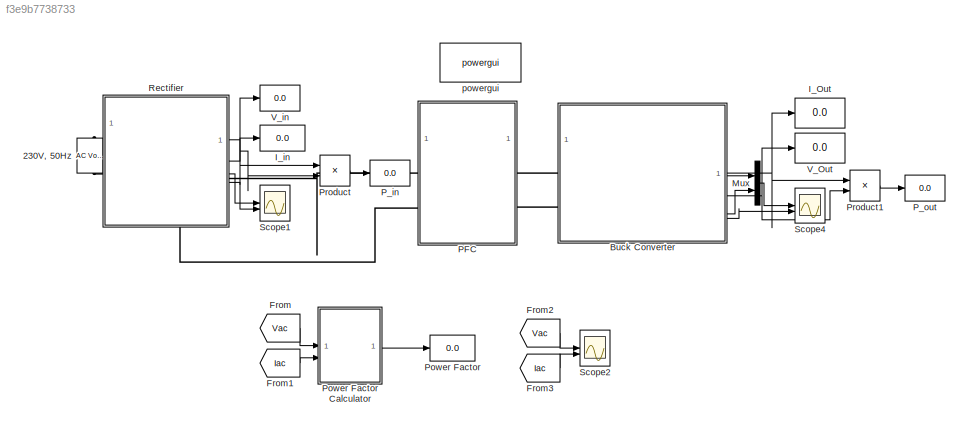
MODEL slx_f3e9b7738733
KIND model
CONFIG AbsTol = auto
CONFIG EnableMultiTasking = off
CONFIG FixedStep = auto
CONFIG MaxStep = auto
CONFIG MinStep = 1e-5
CONFIG RelTol = 1e-3
CONFIG SampleTimeConstraint = Unconstrained
CONFIG SolverName = VariableStepAuto
CONFIG StartTime = 0.0
CONFIG StopTime = 5
BLOCK [Reference] 230V, 50Hz  REF=spsACVoltageSourceLib/AC Voltage Source
  LibrarySourceBlock = sps_lib/Sources/AC Voltage Source
  NameLocation = left
  SourceBlock = spsACVoltageSourceLib/AC Voltage Source
  SourceType = AC Voltage Source
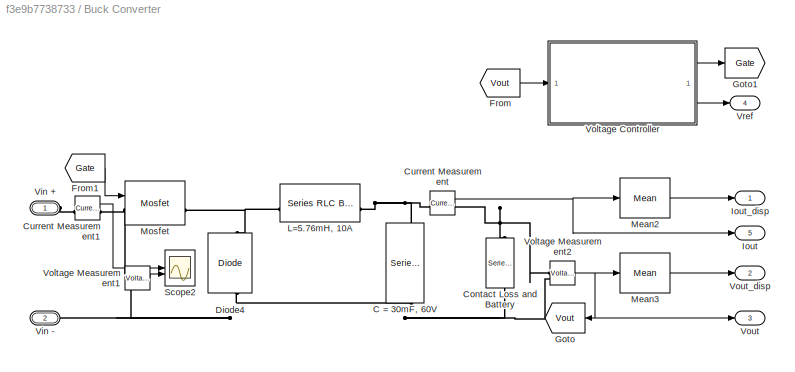
BLOCK [SubSystem] Buck Converter
BLOCK [Reference] Buck Converter/C = 30mF, 60V  REF=spsSeriesRLCBranchLib/Series RLC Branch
  LibrarySourceBlock = sps_lib/Passives/Series RLC Branch
  NameLocation = left
  SourceBlock = spsSeriesRLCBranchLib/Series RLC Branch
  SourceType = Series RLC Branch
BLOCK [Reference] Buck Converter/Contact Loss and Battery  REF=spsSeriesRLCBranchLib/Series RLC Branch
  LibrarySourceBlock = sps_lib/Passives/Series RLC Branch
  NameLocation = left
  SourceBlock = spsSeriesRLCBranchLib/Series RLC Branch
  SourceType = Series RLC Branch
BLOCK [Reference] Buck Converter/Current Measurement  REF=spsCurrentMeasurementLib/Current Measurement
  LibrarySourceBlock = sps_lib/Sensors and Measurements/Current Measurement
  SourceBlock = spsCurrentMeasurementLib/Current Measurement
  SourceType = Current Measurement
  UserDataPersistent = on
BLOCK [Reference] Buck Converter/Current Measurement1  REF=spsCurrentMeasurementLib/Current Measurement
  LibrarySourceBlock = sps_lib/Sensors and Measurements/Current Measurement
  SourceBlock = spsCurrentMeasurementLib/Current Measurement
  SourceType = Current Measurement
  UserDataPersistent = on
BLOCK [Reference] Buck Converter/Diode4  REF=spsDiodeLib/Diode
  LibrarySourceBlock = sps_lib/Power Electronics/Diode
  NameLocation = right
  SourceBlock = spsDiodeLib/Diode
  SourceType = Diode
BLOCK [From] Buck Converter/From
  GotoTag = Vout
BLOCK [From] Buck Converter/From1
  GotoTag = Gate
BLOCK [Goto] Buck Converter/Goto
  GotoTag = Vout
  NameLocation = top
BLOCK [Goto] Buck Converter/Goto1
  GotoTag = Gate
BLOCK [Outport] Buck Converter/Iout
  Port = 5
BLOCK [Outport] Buck Converter/Iout_disp
BLOCK [Reference] Buck Converter/L=5.76mH, 10A  REF=spsSeriesRLCBranchLib/Series RLC Branch
  LibrarySourceBlock = sps_lib/Passives/Series RLC Branch
  SourceBlock = spsSeriesRLCBranchLib/Series RLC Branch
  SourceType = Series RLC Branch
BLOCK [Reference] Buck Converter/Mean2  REF=spsMeanLib/Mean
  LibrarySourceBlock = sps_lib/Sensors and Measurements/Mean
  SourceBlock = spsMeanLib/Mean
  SourceType = Mean
BLOCK [Reference] Buck Converter/Mean3  REF=spsMeanLib/Mean
  LibrarySourceBlock = sps_lib/Sensors and Measurements/Mean
  SourceBlock = spsMeanLib/Mean
  SourceType = Mean
BLOCK [Reference] Buck Converter/Mosfet  REF=spsMosfetLib/Mosfet
  LibrarySourceBlock = sps_lib/Power Electronics/Mosfet
  SourceBlock = spsMosfetLib/Mosfet
  SourceType = Mosfet
BLOCK [Scope] Buck Converter/Scope2
  Floating = off
  NumInputPorts = 2
  ScopeSpecificationString = Simulink.scopes.TimeScopeBlockCfg('CurrentConfiguration', extmgr.ConfigurationSet(extmgr.Configuration('Core','General UI',true,'FigureColor',[1 1 1]),extmgr.Configuration('Core','Source UI',true),extmgr.Configuration('Sources','WiredSimulink',true,'DataLoggingVariableName','buck_in','DataLogging',true,'DataLoggingSaveFormat','StructureWithTime'),extmgr.Configuration('Visuals','Time Domain',true,'...<+2476ch>
BLOCK [PMIOPort] Buck Converter/Vin +
  Side = Left
BLOCK [PMIOPort] Buck Converter/Vin -
  Port = 2
  Side = Left
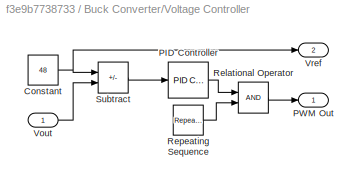
BLOCK [SubSystem] Buck Converter/Voltage Controller
BLOCK [Constant] Buck Converter/Voltage Controller/Constant
  Value = 48
BLOCK [Reference] Buck Converter/Voltage Controller/PID Controller  REF=slpidlib/PID Controller
  LibrarySourceBlock = simulink/Continuous/PID Controller
  SourceBlock = slpidlib/PID Controller
  SourceType = PID 1dof
BLOCK [Outport] Buck Converter/Voltage Controller/PWM Out
BLOCK [RelationalOperator] Buck Converter/Voltage Controller/Relational Operator
  InputSameDT = off
  OutDataTypeStr = boolean
  RndMeth = Simplest
BLOCK [Reference] Buck Converter/Voltage Controller/Repeating Sequence  REF=simulink/Sources/Repeating
Sequence
  SourceBlock = simulink/Sources/Repeating\nSequence
  SourceType = Repeating table
BLOCK [Sum] Buck Converter/Voltage Controller/Subtract
  IconShape = rectangular
  Inputs = +-
BLOCK [Inport] Buck Converter/Voltage Controller/Vout
  NameLocation = top
BLOCK [Outport] Buck Converter/Voltage Controller/Vref
  Port = 2
BLOCK [Reference] Buck Converter/Voltage Measurement1  REF=spsVoltageMeasurementLib/Voltage Measurement
  LibrarySourceBlock = sps_lib/Sensors and Measurements/Voltage Measurement
  NameLocation = right
  SourceBlock = spsVoltageMeasurementLib/Voltage Measurement
  SourceType = Voltage Measurement
  UserDataPersistent = on
BLOCK [Reference] Buck Converter/Voltage Measurement2  REF=spsVoltageMeasurementLib/Voltage Measurement
  LibrarySourceBlock = sps_lib/Sensors and Measurements/Voltage Measurement
  SourceBlock = spsVoltageMeasurementLib/Voltage Measurement
  SourceType = Voltage Measurement
  UserDataPersistent = on
BLOCK [Outport] Buck Converter/Vout
  Port = 3
BLOCK [Outport] Buck Converter/Vout_disp
  Port = 2
BLOCK [Outport] Buck Converter/Vref
  Port = 4
BLOCK [From] From
  GotoTag = Vac
  TagVisibility = global
BLOCK [From] From1
  GotoTag = Iac
  TagVisibility = global
BLOCK [From] From2
  GotoTag = Vac
  TagVisibility = global
BLOCK [From] From3
  GotoTag = Iac
  TagVisibility = global
BLOCK [Display] I_Out
  Decimation = 1
  NameLocation = right
BLOCK [Display] I_in
  Decimation = 1
  NameLocation = right
BLOCK [Mux] Mux
  DisplayOption = bar
  Inputs = 2
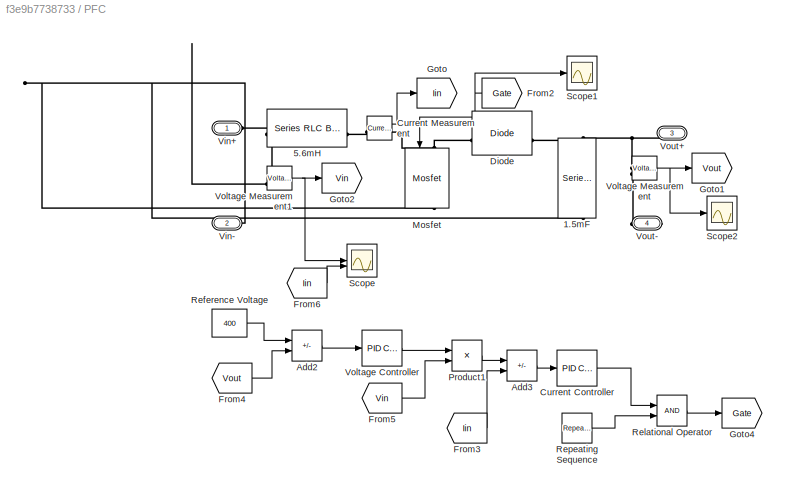
BLOCK [SubSystem] PFC
BLOCK [Reference] PFC/1.5mF  REF=spsSeriesRLCBranchLib/Series RLC Branch
  LibrarySourceBlock = sps_lib/Passives/Series RLC Branch
  NameLocation = left
  SourceBlock = spsSeriesRLCBranchLib/Series RLC Branch
  SourceType = Series RLC Branch
BLOCK [Reference] PFC/5.6mH  REF=spsSeriesRLCBranchLib/Series RLC Branch
  LibrarySourceBlock = sps_lib/Passives/Series RLC Branch
  NameLocation = top
  SourceBlock = spsSeriesRLCBranchLib/Series RLC Branch
  SourceType = Series RLC Branch
BLOCK [Sum] PFC/Add2
  IconShape = rectangular
  Inputs = +-
BLOCK [Sum] PFC/Add3
  IconShape = rectangular
  Inputs = +-
BLOCK [Reference] PFC/Current Controller  REF=slpidlib/PID Controller
  LibrarySourceBlock = simulink/Continuous/PID Controller
  SourceBlock = slpidlib/PID Controller
  SourceType = PID 1dof
BLOCK [Reference] PFC/Current Measurement  REF=spsCurrentMeasurementLib/Current Measurement
  LibrarySourceBlock = sps_lib/Sensors and Measurements/Current Measurement
  SourceBlock = spsCurrentMeasurementLib/Current Measurement
  SourceType = Current Measurement
  UserDataPersistent = on
BLOCK [Reference] PFC/Diode  REF=spsDiodeLib/Diode
  LibrarySourceBlock = sps_lib/Power Electronics/Diode
  SourceBlock = spsDiodeLib/Diode
  SourceType = Diode
BLOCK [From] PFC/From2
  GotoTag = Gate
  NameLocation = top
BLOCK [From] PFC/From3
  GotoTag = Iin
BLOCK [From] PFC/From4
  GotoTag = Vout
BLOCK [From] PFC/From5
  GotoTag = Vin
  TagVisibility = global
BLOCK [From] PFC/From6
  GotoTag = Iin
BLOCK [Goto] PFC/Goto
  GotoTag = Iin
BLOCK [Goto] PFC/Goto1
  GotoTag = Vout
BLOCK [Goto] PFC/Goto2
  GotoTag = Vin
  TagVisibility = global
BLOCK [Goto] PFC/Goto4
  GotoTag = Gate
  NameLocation = top
BLOCK [Reference] PFC/Mosfet  REF=spsMosfetLib/Mosfet
  LibrarySourceBlock = sps_lib/Power Electronics/Mosfet
  NameLocation = left
  SourceBlock = spsMosfetLib/Mosfet
  SourceType = Mosfet
BLOCK [Product] PFC/Product1
BLOCK [Constant] PFC/Reference Voltage
  Value = 400
BLOCK [RelationalOperator] PFC/Relational Operator
  InputSameDT = off
  OutDataTypeStr = boolean
  RndMeth = Simplest
BLOCK [Reference] PFC/Repeating Sequence  REF=simulink/Sources/Repeating
Sequence
  SourceBlock = simulink/Sources/Repeating\nSequence
  SourceType = Repeating table
BLOCK [Scope] PFC/Scope
  Floating = off
  NumInputPorts = 2
  ScopeSpecificationString = Simulink.scopes.TimeScopeBlockCfg('CurrentConfiguration', extmgr.ConfigurationSet(extmgr.Configuration('Core','General UI',true,'FigureColor',[1 1 1]),extmgr.Configuration('Core','Source UI',true),extmgr.Configuration('Sources','WiredSimulink',true,'DataLoggingVariableName','ScopeData1'),extmgr.Configuration('Visuals','Time Domain',true,'SerializedDisplays',{struct('MinYLimReal','-62.82479','MaxYL...<+2308ch>
BLOCK [Scope] PFC/Scope1
  Floating = off
  NumInputPorts = 1
  ScopeSpecificationString = Simulink.scopes.TimeScopeBlockCfg('CurrentConfiguration', extmgr.ConfigurationSet(extmgr.Configuration('Core','General UI',true,'FigureColor',[1 1 1]),extmgr.Configuration('Core','Source UI',true),extmgr.Configuration('Sources','WiredSimulink',true,'DataLoggingVariableName','ScopeData2'),extmgr.Configuration('Visuals','Time Domain',true,'SerializedDisplays',{struct('MinYLimReal','-0.125','MaxYLimR...<+1694ch>
BLOCK [Scope] PFC/Scope2
  Floating = off
  NumInputPorts = 1
  ScopeSpecificationString = Simulink.scopes.TimeScopeBlockCfg('CurrentConfiguration', extmgr.ConfigurationSet(extmgr.Configuration('Core','General UI',true,'FigureColor',[1 1 1]),extmgr.Configuration('Core','Source UI',true),extmgr.Configuration('Sources','WiredSimulink',true,'DataLoggingVariableName','ScopeData1'),extmgr.Configuration('Visuals','Time Domain',true,'SerializedDisplays',{struct('MinYLimReal','-67.34743','MaxYL...<+1742ch>
BLOCK [PMIOPort] PFC/Vin+
  Side = Left
BLOCK [PMIOPort] PFC/Vin-
  Port = 2
  Side = Left
BLOCK [Reference] PFC/Voltage Controller  REF=slpidlib/PID Controller
  LibrarySourceBlock = simulink/Continuous/PID Controller
  SourceBlock = slpidlib/PID Controller
  SourceType = PID 1dof
BLOCK [Reference] PFC/Voltage Measurement  REF=spsVoltageMeasurementLib/Voltage Measurement
  LibrarySourceBlock = sps_lib/Sensors and Measurements/Voltage Measurement
  SourceBlock = spsVoltageMeasurementLib/Voltage Measurement
  SourceType = Voltage Measurement
  UserDataPersistent = on
BLOCK [Reference] PFC/Voltage Measurement1  REF=spsVoltageMeasurementLib/Voltage Measurement
  LibrarySourceBlock = sps_lib/Sensors and Measurements/Voltage Measurement
  SourceBlock = spsVoltageMeasurementLib/Voltage Measurement
  SourceType = Voltage Measurement
  UserDataPersistent = on
BLOCK [PMIOPort] PFC/Vout+
  NameLocation = top
  Port = 3
  Side = Right
BLOCK [PMIOPort] PFC/Vout-
  NameLocation = top
  Port = 4
  Side = Right
BLOCK [Display] P_in
  Decimation = 1
BLOCK [Display] P_out
  Decimation = 1
BLOCK [Display] Power Factor
  Decimation = 1
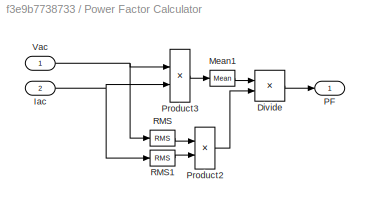
BLOCK [SubSystem] Power Factor Calculator
BLOCK [Product] Power Factor Calculator/Divide
  Inputs = */
BLOCK [Inport] Power Factor Calculator/Iac
  NameLocation = left
  Port = 2
BLOCK [Reference] Power Factor Calculator/Mean1  REF=spsMeanLib/Mean
  LibrarySourceBlock = sps_lib/Sensors and Measurements/Mean
  SourceBlock = spsMeanLib/Mean
  SourceType = Mean
BLOCK [Outport] Power Factor Calculator/PF
BLOCK [Product] Power Factor Calculator/Product2
BLOCK [Product] Power Factor Calculator/Product3
BLOCK [Reference] Power Factor Calculator/RMS  REF=spsRMSLib/RMS
  LibrarySourceBlock = sps_lib/Sensors and Measurements/RMS
  SourceBlock = spsRMSLib/RMS
  SourceType = RMS
BLOCK [Reference] Power Factor Calculator/RMS1  REF=spsRMSLib/RMS
  LibrarySourceBlock = sps_lib/Sensors and Measurements/RMS
  SourceBlock = spsRMSLib/RMS
  SourceType = RMS
BLOCK [Inport] Power Factor Calculator/Vac
  NameLocation = left
BLOCK [Product] Product
BLOCK [Product] Product1
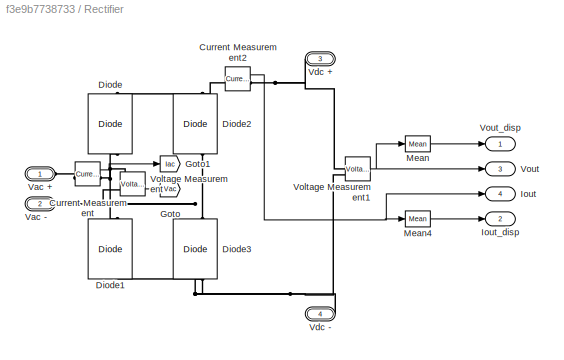
BLOCK [SubSystem] Rectifier
  PortSchema = {"entries":[{"content":{"sides":[{"content":{"connectorIds":["LConn1","LConn2"]},"type":"ConnectorPlacement.EquallySpacedRectSide","uuid":"ac46f495-71ed-46cc-9866-352bc8b0be31"},{"content":{"connectorIds":["Out1","Out2","Out3","Out4"],"side":"RIGHT"},"type":"ConnectorPlacement.EquallySpacedRectSide","uuid":"f152eca0-0b2e-4cb8-8b8e-dfe682aa8b56"},{"content":{"connectorIds":["LConn3"],"side":"TOP"},...<+433ch>
BLOCK [Reference] Rectifier/Current Measurement  REF=spsCurrentMeasurementLib/Current Measurement
  LibrarySourceBlock = sps_lib/Sensors and Measurements/Current Measurement
  SourceBlock = spsCurrentMeasurementLib/Current Measurement
  SourceType = Current Measurement
  UserDataPersistent = on
BLOCK [Reference] Rectifier/Current Measurement2  REF=spsCurrentMeasurementLib/Current Measurement
  LibrarySourceBlock = sps_lib/Sensors and Measurements/Current Measurement
  SourceBlock = spsCurrentMeasurementLib/Current Measurement
  SourceType = Current Measurement
  UserDataPersistent = on
BLOCK [Reference] Rectifier/Diode  REF=spsDiodeLib/Diode
  LibrarySourceBlock = sps_lib/Power Electronics/Diode
  NameLocation = right
  SourceBlock = spsDiodeLib/Diode
  SourceType = Diode
BLOCK [Reference] Rectifier/Diode1  REF=spsDiodeLib/Diode
  LibrarySourceBlock = sps_lib/Power Electronics/Diode
  NameLocation = right
  SourceBlock = spsDiodeLib/Diode
  SourceType = Diode
BLOCK [Reference] Rectifier/Diode2  REF=spsDiodeLib/Diode
  LibrarySourceBlock = sps_lib/Power Electronics/Diode
  NameLocation = right
  SourceBlock = spsDiodeLib/Diode
  SourceType = Diode
BLOCK [Reference] Rectifier/Diode3  REF=spsDiodeLib/Diode
  LibrarySourceBlock = sps_lib/Power Electronics/Diode
  NameLocation = right
  SourceBlock = spsDiodeLib/Diode
  SourceType = Diode
BLOCK [Goto] Rectifier/Goto
  GotoTag = Vac
  TagVisibility = global
BLOCK [Goto] Rectifier/Goto1
  GotoTag = Iac
  TagVisibility = global
BLOCK [Outport] Rectifier/Iout
  NameLocation = right
  Port = 4
BLOCK [Outport] Rectifier/Iout_disp
  NameLocation = right
  Port = 2
BLOCK [Reference] Rectifier/Mean  REF=spsMeanLib/Mean
  LibrarySourceBlock = sps_lib/Sensors and Measurements/Mean
  SourceBlock = spsMeanLib/Mean
  SourceType = Mean
BLOCK [Reference] Rectifier/Mean4  REF=spsMeanLib/Mean
  LibrarySourceBlock = sps_lib/Sensors and Measurements/Mean
  SourceBlock = spsMeanLib/Mean
  SourceType = Mean
BLOCK [PMIOPort] Rectifier/Vac +
  NameLocation = left
  Side = Left
BLOCK [PMIOPort] Rectifier/Vac -
  NameLocation = left
  Port = 2
  Side = Left
BLOCK [PMIOPort] Rectifier/Vdc +
  NameLocation = right
  Port = 3
  Side = Left
BLOCK [PMIOPort] Rectifier/Vdc -
  NameLocation = right
  Port = 4
  Side = Right
BLOCK [Reference] Rectifier/Voltage Measurement  REF=spsVoltageMeasurementLib/Voltage Measurement
  LibrarySourceBlock = sps_lib/Sensors and Measurements/Voltage Measurement
  SourceBlock = spsVoltageMeasurementLib/Voltage Measurement
  SourceType = Voltage Measurement
  UserDataPersistent = on
BLOCK [Reference] Rectifier/Voltage Measurement1  REF=spsVoltageMeasurementLib/Voltage Measurement
  LibrarySourceBlock = sps_lib/Sensors and Measurements/Voltage Measurement
  SourceBlock = spsVoltageMeasurementLib/Voltage Measurement
  SourceType = Voltage Measurement
  UserDataPersistent = on
BLOCK [Outport] Rectifier/Vout
  NameLocation = right
  Port = 3
BLOCK [Outport] Rectifier/Vout_disp
  NameLocation = right
BLOCK [Scope] Scope1
  Floating = off
  NumInputPorts = 2
  ScopeSpecificationString = Simulink.scopes.TimeScopeBlockCfg('CurrentConfiguration', extmgr.ConfigurationSet(extmgr.Configuration('Core','General UI',true,'FigureColor',[1 1 1]),extmgr.Configuration('Core','Source UI',true),extmgr.Configuration('Sources','WiredSimulink',true,'DataLoggingVariableName','Vout_FBR','DataLogging',true,'DataLoggingSaveFormat','StructureWithTime'),extmgr.Configuration('Visuals','Time Domain',true,...<+2428ch>
BLOCK [Scope] Scope2
  Floating = off
  NumInputPorts = 2
  ScopeSpecificationString = Simulink.scopes.TimeScopeBlockCfg('CurrentConfiguration', extmgr.ConfigurationSet(extmgr.Configuration('Core','General UI',true,'FigureColor',[1 1 1]),extmgr.Configuration('Core','Source UI',true),extmgr.Configuration('Sources','WiredSimulink',true,'DataLoggingVariableName','ScopeData2','DataLogging',true,'DataLoggingSaveFormat','StructureWithTime'),extmgr.Configuration('Visuals','Time Domain',tru...<+2628ch>
BLOCK [Scope] Scope4
  Floating = off
  NumInputPorts = 2
  ScopeSpecificationString = Simulink.scopes.TimeScopeBlockCfg('CurrentConfiguration', extmgr.ConfigurationSet(extmgr.Configuration('Core','General UI',true,'FigureColor',[1 1 1]),extmgr.Configuration('Core','Source UI',true),extmgr.Configuration('Sources','WiredSimulink',true,'DataLoggingVariableName','Boost_Out','DataLogging',true,'DataLoggingDecimateData',true,'DataLoggingSaveFormat','StructureWithTime'),extmgr.Configurati...<+2598ch>
BLOCK [Display] V_Out
  Decimation = 1
  NameLocation = right
BLOCK [Display] V_in
  Decimation = 1
  NameLocation = right
BLOCK [Reference] powergui  REF=sps_lib/powergui
  LibrarySourceBlock = sps_lib/powergui
  Priority = 1
  SourceBlock = sps_lib/powergui
  SourceType = PSB option menu block
LINE Buck Converter/Current Measurement1:1 -> Buck Converter/Scope2:1
NET Buck Converter/Current Measurement:1 -> Buck Converter/Iout:1, Buck Converter/Mean2:1
LINE Buck Converter/From1:1 -> Buck Converter/Mosfet:1
LINE Buck Converter/From:1 -> Buck Converter/Voltage Controller:1
LINE Buck Converter/Mean2:1 -> Buck Converter/Iout_disp:1
LINE Buck Converter/Mean3:1 -> Buck Converter/Vout_disp:1
NET Buck Converter/Voltage Controller/Constant:1 -> Buck Converter/Voltage Controller/Subtract:1, Buck Converter/Voltage Controller/Vref:1
LINE Buck Converter/Voltage Controller/PID Controller:1 -> Buck Converter/Voltage Controller/Relational Operator:1
LINE Buck Converter/Voltage Controller/Relational Operator:1 -> Buck Converter/Voltage Controller/PWM Out:1
LINE Buck Converter/Voltage Controller/Repeating Sequence:1 -> Buck Converter/Voltage Controller/Relational Operator:2
LINE Buck Converter/Voltage Controller/Subtract:1 -> Buck Converter/Voltage Controller/PID Controller:1
LINE Buck Converter/Voltage Controller/Vout:1 -> Buck Converter/Voltage Controller/Subtract:2
LINE Buck Converter/Voltage Controller:1 -> Buck Converter/Goto1:1
LINE Buck Converter/Voltage Controller:2 -> Buck Converter/Vref:1
LINE Buck Converter/Voltage Measurement1:1 -> Buck Converter/Scope2:2
NET Buck Converter/Voltage Measurement2:1 -> Buck Converter/Goto:1, Buck Converter/Mean3:1, Buck Converter/Vout:1
NET Buck Converter:1 -> I_Out:1, Product1:1
NET Buck Converter:2 -> Product1:2, V_Out:1
LINE Buck Converter:3 -> Mux:1
LINE Buck Converter:4 -> Mux:2
LINE Buck Converter:5 -> Scope4:2
LINE From1:1 -> Power Factor Calculator:2
LINE From2:1 -> Scope2:1
LINE From3:1 -> Scope2:2
LINE From:1 -> Power Factor Calculator:1
LINE Mux:1 -> Scope4:1
LINE PFC/Add2:1 -> PFC/Voltage Controller:1
LINE PFC/Add3:1 -> PFC/Current Controller:1
LINE PFC/Current Controller:1 -> PFC/Relational Operator:1
LINE PFC/Current Measurement:1 -> PFC/Goto:1
NET PFC/From2:1 -> PFC/Mosfet:1, PFC/Scope1:1
LINE PFC/From3:1 -> PFC/Add3:2
LINE PFC/From4:1 -> PFC/Add2:2
LINE PFC/From5:1 -> PFC/Product1:2
LINE PFC/From6:1 -> PFC/Scope:2
LINE PFC/Product1:1 -> PFC/Add3:1
LINE PFC/Reference Voltage:1 -> PFC/Add2:1
LINE PFC/Relational Operator:1 -> PFC/Goto4:1
LINE PFC/Repeating Sequence:1 -> PFC/Relational Operator:2
LINE PFC/Voltage Controller:1 -> PFC/Product1:1
NET PFC/Voltage Measurement1:1 -> PFC/Goto2:1, PFC/Scope:1
NET PFC/Voltage Measurement:1 -> PFC/Goto1:1, PFC/Scope2:1
LINE Power Factor Calculator/Divide:1 -> Power Factor Calculator/PF:1
NET Power Factor Calculator/Iac:1 -> Power Factor Calculator/Product3:2, Power Factor Calculator/RMS1:1
LINE Power Factor Calculator/Mean1:1 -> Power Factor Calculator/Divide:1
LINE Power Factor Calculator/Product2:1 -> Power Factor Calculator/Divide:2
LINE Power Factor Calculator/Product3:1 -> Power Factor Calculator/Mean1:1
LINE Power Factor Calculator/RMS1:1 -> Power Factor Calculator/Product2:2
LINE Power Factor Calculator/RMS:1 -> Power Factor Calculator/Product2:1
NET Power Factor Calculator/Vac:1 -> Power Factor Calculator/Product3:1, Power Factor Calculator/RMS:1
LINE Power Factor Calculator:1 -> Power Factor:1
LINE Product1:1 -> P_out:1
LINE Product:1 -> P_in:1
NET Rectifier/Current Measurement2:1 -> Rectifier/Iout:1, Rectifier/Mean4:1
LINE Rectifier/Current Measurement:1 -> Rectifier/Goto1:1
LINE Rectifier/Mean4:1 -> Rectifier/Iout_disp:1
LINE Rectifier/Mean:1 -> Rectifier/Vout_disp:1
NET Rectifier/Voltage Measurement1:1 -> Rectifier/Mean:1, Rectifier/Vout:1
LINE Rectifier/Voltage Measurement:1 -> Rectifier/Goto:1
NET Rectifier:1 -> Product:1, V_in:1
NET Rectifier:2 -> I_in:1, Product:2
LINE Rectifier:3 -> Scope1:1
LINE Rectifier:4 -> Scope1:2
PLINE 230V, 50Hz:LConn1 -- Rectifier:LConn2
PLINE 230V, 50Hz:RConn1 -- Rectifier:LConn1
PNET net1: Buck Converter/C = 30mF, 60V:LConn1 -- Buck Converter/Current Measurement:LConn1 -- Buck Converter/L=5.76mH, 10A:RConn1
PNET net2: Buck Converter/C = 30mF, 60V:RConn1 -- Buck Converter/Contact Loss and Battery:RConn1 -- Buck Converter/Diode4:LConn1 -- Buck Converter/Vin -:RConn1 -- Buck Converter/Voltage Measurement1:LConn2 -- Buck Converter/Voltage Measurement2:LConn2
PNET net3: Buck Converter/Contact Loss and Battery:LConn1 -- Buck Converter/Current Measurement:RConn1 -- Buck Converter/Voltage Measurement2:LConn1
PLINE Buck Converter/Current Measurement1:LConn1 -- Buck Converter/Vin +:RConn1
PNET net4: Buck Converter/Current Measurement1:RConn1 -- Buck Converter/Mosfet:LConn1 -- Buck Converter/Voltage Measurement1:LConn1
PNET net5: Buck Converter/Diode4:RConn1 -- Buck Converter/L=5.76mH, 10A:LConn1 -- Buck Converter/Mosfet:RConn1
PLINE Buck Converter:LConn1 -- PFC:RConn1
PLINE Buck Converter:LConn2 -- PFC:RConn2
PNET net6: PFC/1.5mF:LConn1 -- PFC/Diode:RConn1 -- PFC/Voltage Measurement:LConn1 -- PFC/Vout+:RConn1
PNET net7: PFC/1.5mF:RConn1 -- PFC/Mosfet:RConn1 -- PFC/Vin-:RConn1 -- PFC/Voltage Measurement1:LConn2 -- PFC/Voltage Measurement:LConn2 -- PFC/Vout-:RConn1
PNET net8: PFC/5.6mH:LConn1 -- PFC/Vin+:RConn1 -- PFC/Voltage Measurement1:LConn1
PLINE PFC/5.6mH:RConn1 -- PFC/Current Measurement:LConn1
PNET net9: PFC/Current Measurement:RConn1 -- PFC/Diode:LConn1 -- PFC/Mosfet:LConn1
PLINE PFC:LConn1 -- Rectifier:LConn3
PLINE PFC:LConn2 -- Rectifier:RConn1
PNET net10: Rectifier/Current Measurement2:LConn1 -- Rectifier/Diode2:RConn1 -- Rectifier/Diode:RConn1
PNET net11: Rectifier/Current Measurement2:RConn1 -- Rectifier/Vdc +:RConn1 -- Rectifier/Voltage Measurement1:LConn1
PLINE Rectifier/Current Measurement:LConn1 -- Rectifier/Vac +:RConn1
PNET net12: Rectifier/Current Measurement:RConn1 -- Rectifier/Diode1:RConn1 -- Rectifier/Diode:LConn1 -- Rectifier/Voltage Measurement:LConn1
PNET net13: Rectifier/Diode1:LConn1 -- Rectifier/Diode3:LConn1 -- Rectifier/Vdc -:RConn1 -- Rectifier/Voltage Measurement1:LConn2
PNET net14: Rectifier/Diode2:LConn1 -- Rectifier/Diode3:RConn1 -- Rectifier/Vac -:RConn1 -- Rectifier/Voltage Measurement:LConn2
note: NET lines group one-source signal fan-out (src -> all destinations, sorted); 1:1 wires keep LINE; PNET lines group multi-terminal physical nets as a canonical sorted terminal list (undirected conserving connections); 2-terminal nets keep the pairwise PLINE form
